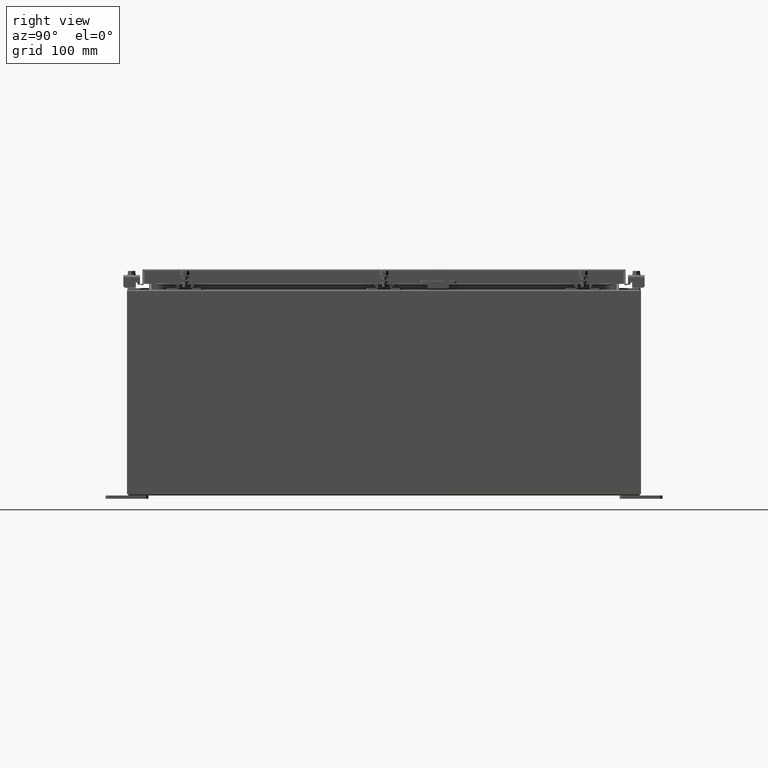
[diagram: clean part render]
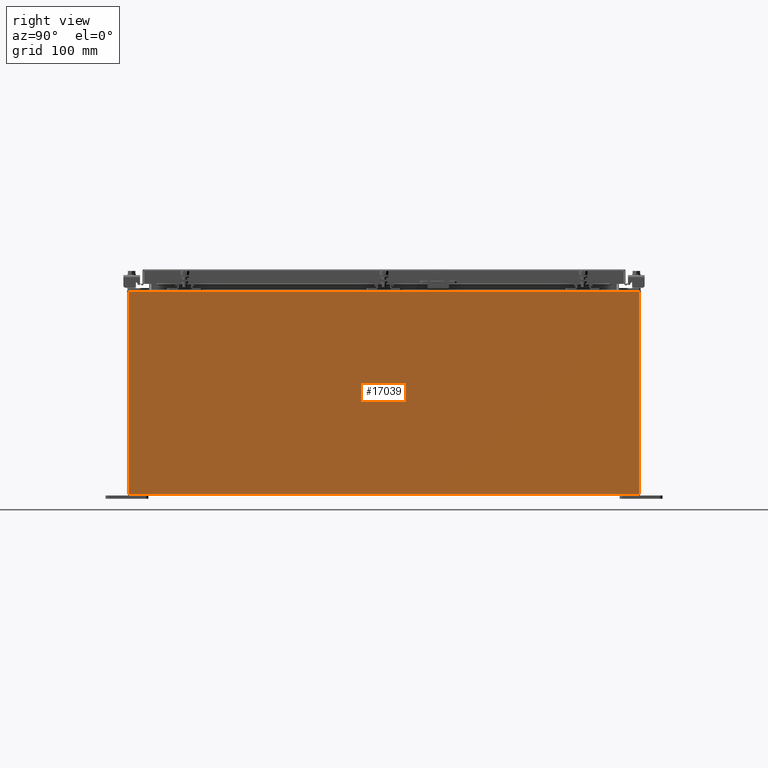
[diagram: same view with one face highlighted and labeled with its STEP entity id]
A machine part, right view. The second image highlights one B-rep face of the part: STEP entity #17039.
In plain terms, the highlighted planar face has unit normal (-1, 0, 0).
Its self-contained STEP definition (entity closure, byte-faithful):
#1147 = CARTESIAN_POINT ( 'NONE',  ( 11.99999999999999600, -14.92530000000000000, 0.01299999999999997900 ) ) ;
#1607 = CARTESIAN_POINT ( 'NONE',  ( 11.99999999999999600, 14.92529999999999800, 0.01299999999999766100 ) ) ;
#3035 = PLANE ( 'NONE',  #23904 ) ;
#4820 = VECTOR ( 'NONE', #5888, 39.37007874015748100 ) ;
#5888 = DIRECTION ( 'NONE',  ( -3.482016343714355500E-015, -1.832640180902292400E-016, -1.000000000000000000 ) ) ;
#5897 = CARTESIAN_POINT ( 'NONE',  ( 11.99999999999999600, -14.92529999999999800, 0.01299999999999984700 ) ) ;
#9158 = VECTOR ( 'NONE', #22933, 39.37007874015748100 ) ;
#9256 = VERTEX_POINT ( 'NONE', #1607 ) ;
#9743 = CARTESIAN_POINT ( 'NONE',  ( 12.00000000000003700, 14.92529999999999800, 11.83760000000000000 ) ) ;
#10051 = LINE ( 'NONE', #37357, #9158 ) ;
#10924 = CARTESIAN_POINT ( 'NONE',  ( 11.99999999999999600, 14.92530000000000000, -3.930973933138173100E-014 ) ) ;
#12079 = ORIENTED_EDGE ( 'NONE', *, *, #21792, .T. ) ;
#13343 = LINE ( 'NONE', #10924, #27796 ) ;
#13829 = DIRECTION ( 'NONE',  ( 3.482016343714355500E-015, -1.832640180902292400E-016, 1.000000000000000000 ) ) ;
#14696 = DIRECTION ( 'NONE',  ( -1.000000000000000000, 0.0000000000000000000, 3.482016343714355100E-015 ) ) ;
#17039 = ADVANCED_FACE ( 'NONE', ( #33438 ), #3035, .F. ) ;
#17665 = ORIENTED_EDGE ( 'NONE', *, *, #17666, .T. ) ;
#17666 = EDGE_CURVE ( 'NONE', #35994, #19758, #27909, .T. ) ;
#18380 = LINE ( 'NONE', #5897, #25142 ) ;
#19758 = VERTEX_POINT ( 'NONE', #1147 ) ;
#21792 = EDGE_CURVE ( 'NONE', #9256, #33181, #13343, .T. ) ;
#22150 = ORIENTED_EDGE ( 'NONE', *, *, #29747, .F. ) ;
#22933 = DIRECTION ( 'NONE',  ( -0.0000000000000000000, -1.000000000000000000, -0.0000000000000000000 ) ) ;
#23248 = DIRECTION ( 'NONE',  ( 2.549319440810500300E-031, -1.000000000000000000, 7.321388497823869400E-017 ) ) ;
#23904 = AXIS2_PLACEMENT_3D ( 'NONE', #26212, #14696, #34953 ) ;
#25103 = EDGE_CURVE ( 'NONE', #33181, #35994, #10051, .T. ) ;
#25142 = VECTOR ( 'NONE', #23248, 39.37007874015748100 ) ;
#26212 = CARTESIAN_POINT ( 'NONE',  ( 11.99999999999999600, 0.0000000000000000000, -4.204500978058383300E-014 ) ) ;
#27796 = VECTOR ( 'NONE', #13829, 39.37007874015748100 ) ;
#27860 = EDGE_LOOP ( 'NONE', ( #36380, #17665, #22150, #12079 ) ) ;
#27909 = LINE ( 'NONE', #29057, #4820 ) ;
#29057 = CARTESIAN_POINT ( 'NONE',  ( 11.99999999999999600, -14.92530000000000000, -3.930973933138173100E-014 ) ) ;
#29747 = EDGE_CURVE ( 'NONE', #9256, #19758, #18380, .T. ) ;
#32707 = CARTESIAN_POINT ( 'NONE',  ( 12.00000000000003700, -14.92529999999999800, 11.83760000000000000 ) ) ;
#33181 = VERTEX_POINT ( 'NONE', #9743 ) ;
#33438 = FACE_OUTER_BOUND ( 'NONE', #27860, .T. ) ;
#34953 = DIRECTION ( 'NONE',  ( 3.482016343714355100E-015, 0.0000000000000000000, 1.000000000000000000 ) ) ;
#35994 = VERTEX_POINT ( 'NONE', #32707 ) ;
#36380 = ORIENTED_EDGE ( 'NONE', *, *, #25103, .T. ) ;
#37357 = CARTESIAN_POINT ( 'NONE',  ( 12.00000000000003700, 14.92529999999999800, 11.83760000000000000 ) ) ;